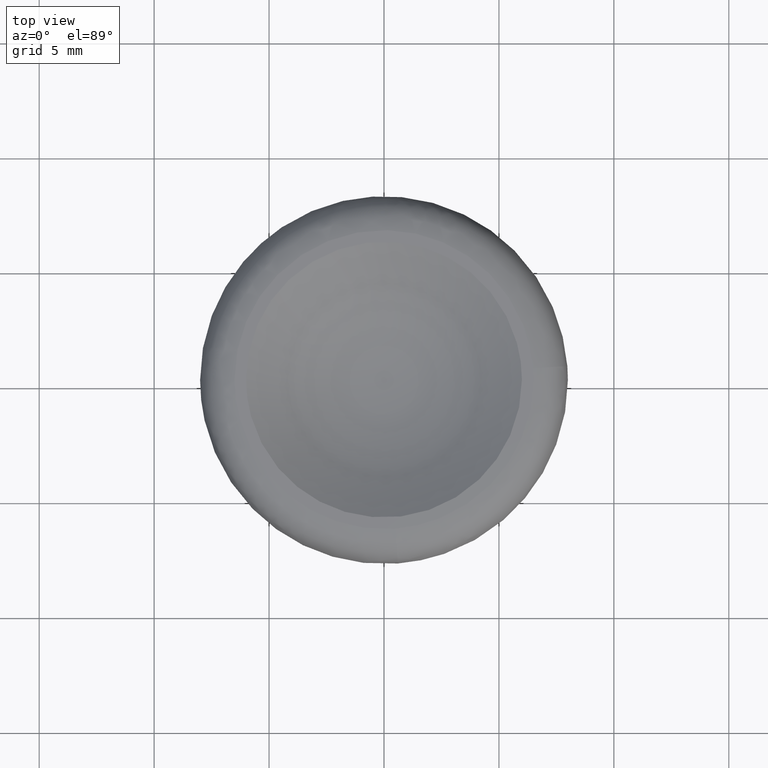
[diagram: clean part render]
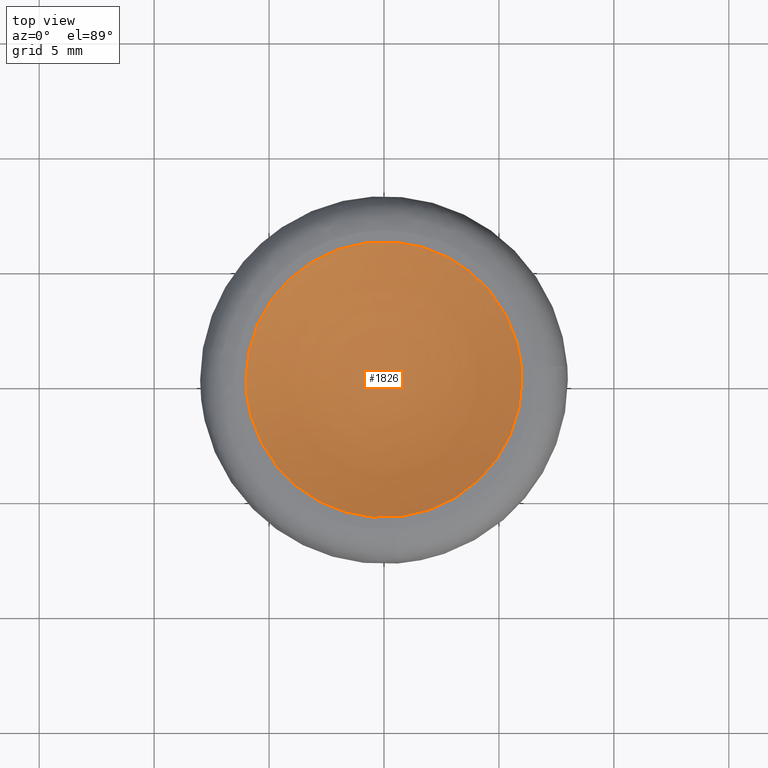
[diagram: same view with one face highlighted and labeled with its STEP entity id]
A machine part, top view. The second image highlights one B-rep face of the part: STEP entity #1826.
In plain terms, the highlighted face is a freeform B-spline surface patch.
Its self-contained STEP definition (entity closure, byte-faithful):
#1766=CARTESIAN_POINT('',(-5.779031761585395,5.779031761585395,11.737571362943029));
#1767=CARTESIAN_POINT('',(-3.231901177761274,6.463802355522549,9.869845407284261));
#1768=CARTESIAN_POINT('',(3.231901285012092,6.463802355522549,9.869845407284261));
#1769=CARTESIAN_POINT('',(5.779031912729342,5.779031720951858,11.737571473771848));
#1770=CARTESIAN_POINT('',(-6.463802355522548,3.231901177761274,9.869845407284261));
#1771=CARTESIAN_POINT('',(-3.666333339012919,3.666333339012920,7.500000000000004));
#1772=CARTESIAN_POINT('',(3.666333460680392,3.666333339012920,7.500000000000004));
#1773=CARTESIAN_POINT('',(6.463802519190606,3.231901152344487,9.869845545933879));
#1774=CARTESIAN_POINT('',(-6.463802355522548,-3.231901285012091,9.869845407284261));
#1775=CARTESIAN_POINT('',(-3.666333339012919,-3.666333460680391,7.500000000000004));
#1776=CARTESIAN_POINT('',(3.666333460680392,-3.666333460680391,7.500000000000004));
#1777=CARTESIAN_POINT('',(6.463802519190606,-3.231901259595302,9.869845545933879));
#1778=CARTESIAN_POINT('',(-5.779031720951856,-5.779031912729341,11.737571473771848));
#1779=CARTESIAN_POINT('',(-3.231901152344486,-6.463802519190605,9.869845545933879));
#1780=CARTESIAN_POINT('',(3.231901259595304,-6.463802519190605,9.869845545933879));
#1781=CARTESIAN_POINT('',(5.779031872095803,-5.779031872095802,11.737571584600664));
#1789=(BOUNDED_SURFACE()B_SPLINE_SURFACE(2,2,((#1766,#1770,#1774,#1778),(#1767,#1771,#1775,#1779),(#1768,#1772,#1776,#1780),(#1769,#1773,#1777,#1781)),.UNSPECIFIED.,.F.,.F.,.U.)B_SPLINE_SURFACE_WITH_KNOTS((3,1,3),(3,1,3),(0.0,6.870875153697910,13.741750535406190),(0.0,6.870875153697912,13.741750535406190),.UNSPECIFIED.)GEOMETRIC_REPRESENTATION_ITEM()RATIONAL_B_SPLINE_SURFACE(((1.268840003055153,1.134420001527576,1.134420001527576,1.268840011976623),(1.134420001527576,1.0,1.0,1.134420010449047),(1.134420001527576,1.0,1.0,1.134420010449047),(1.268840011976623,1.134420010449047,1.134420010449047,1.268840020898093)))REPRESENTATION_ITEM('')SURFACE());
#1790=CARTESIAN_POINT('',(6.0,0.0,9.500000000000000));
#1791=VERTEX_POINT('',#1790);
#1792=CARTESIAN_POINT('',(-6.0,0.0,9.500000000000000));
#1793=VERTEX_POINT('',#1792);
#1794=CARTESIAN_POINT('',(6.0,0.0,9.500000000000000));
#1795=CARTESIAN_POINT('',(6.0,-6.0,9.500000000000000));
#1796=CARTESIAN_POINT('',(0.0,-6.0,9.500000000000000));
#1797=CARTESIAN_POINT('',(-6.0,-6.0,9.500000000000000));
#1798=CARTESIAN_POINT('',(-6.0,0.0,9.500000000000000));
#1806=(BOUNDED_CURVE()B_SPLINE_CURVE(2,(#1794,#1795,#1796,#1797,#1798),.UNSPECIFIED.,.F.,.U.)B_SPLINE_CURVE_WITH_KNOTS((3,2,3),(0.500000000000000,0.750000000000000,1.0),.UNSPECIFIED.)CURVE()GEOMETRIC_REPRESENTATION_ITEM()RATIONAL_B_SPLINE_CURVE((1.0,0.707106781186548,1.0,0.707106781186548,1.0))REPRESENTATION_ITEM(''));
#1807=EDGE_CURVE('',#1791,#1793,#1806,.T.);
#1808=ORIENTED_EDGE('',*,*,#1807,.F.);
#1809=CARTESIAN_POINT('',(-6.0,0.0,9.500000000000000));
#1810=CARTESIAN_POINT('',(-6.0,6.0,9.500000000000000));
#1811=CARTESIAN_POINT('',(0.0,6.0,9.500000000000000));
#1812=CARTESIAN_POINT('',(6.0,6.0,9.500000000000000));
#1813=CARTESIAN_POINT('',(6.0,0.0,9.500000000000000));
#1821=(BOUNDED_CURVE()B_SPLINE_CURVE(2,(#1809,#1810,#1811,#1812,#1813),.UNSPECIFIED.,.F.,.U.)B_SPLINE_CURVE_WITH_KNOTS((3,2,3),(0.0,0.250000000000000,0.500000000000000),.UNSPECIFIED.)CURVE()GEOMETRIC_REPRESENTATION_ITEM()RATIONAL_B_SPLINE_CURVE((1.0,0.707106781186548,1.0,0.707106781186548,1.0))REPRESENTATION_ITEM(''));
#1822=EDGE_CURVE('',#1793,#1791,#1821,.T.);
#1823=ORIENTED_EDGE('',*,*,#1822,.F.);
#1824=EDGE_LOOP('',(#1808,#1823));
#1825=FACE_OUTER_BOUND('',#1824,.T.);
#1826=ADVANCED_FACE('',(#1825),#1789,.F.);